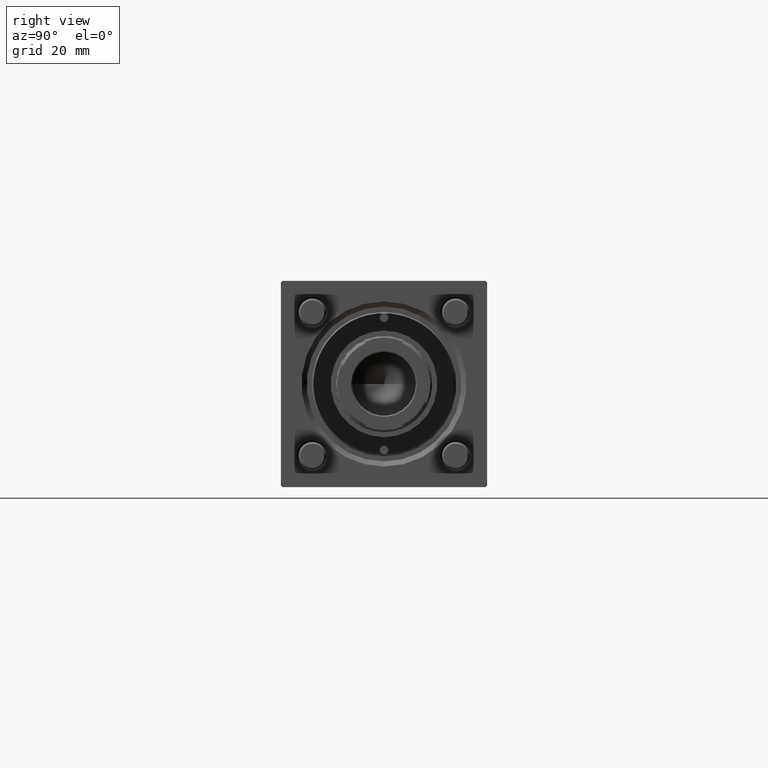
[diagram: clean part render]
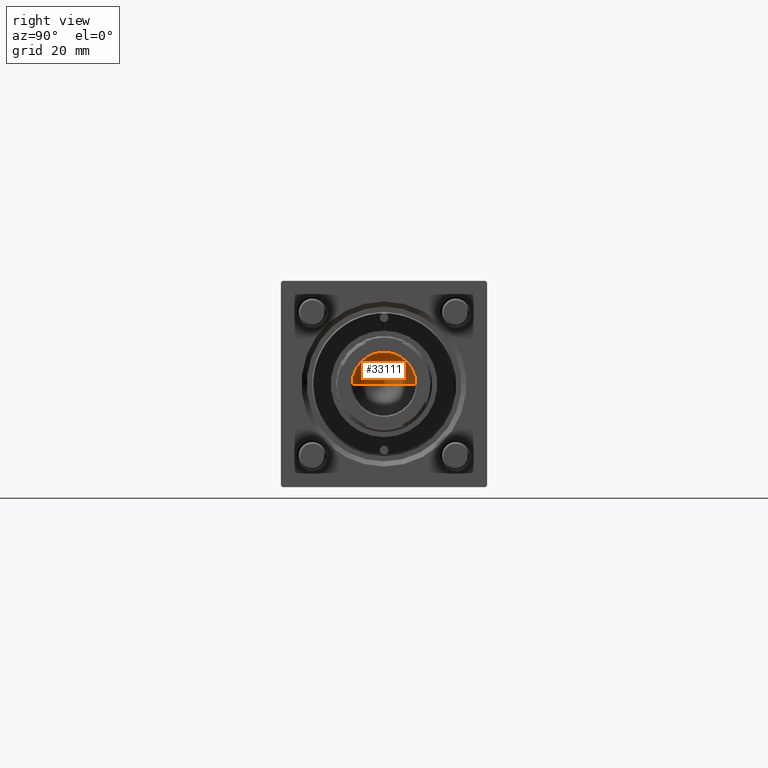
[diagram: same view with one face highlighted and labeled with its STEP entity id]
A machine part, right view. The second image highlights one B-rep face of the part: STEP entity #33111.
In plain terms, the highlighted conical surface has half-angle 59 deg.
Its self-contained STEP definition (entity closure, byte-faithful):
#3789 = CIRCLE ( 'NONE', #35023, 9.249999999999992895 ) ;
#4833 = VECTOR ( 'NONE', #38969, 1000.000000000000000 ) ;
#5595 = DIRECTION ( 'NONE',  ( -0.000000000000000000, -0.000000000000000000, 1.000000000000000000 ) ) ;
#5855 = ORIENTED_EDGE ( 'NONE', *, *, #18677, .F. ) ;
#13964 = DIRECTION ( 'NONE',  ( 1.000000000000000000, 0.000000000000000000, 0.000000000000000000 ) ) ;
#16335 = DIRECTION ( 'NONE',  ( 1.000000000000000000, 0.000000000000000000, 0.000000000000000000 ) ) ;
#18677 = EDGE_CURVE ( 'NONE', #32342, #31755, #35589, .T. ) ;
#20591 = CARTESIAN_POINT ( 'NONE',  ( -9.769621978240258809E-15, 0.000000000000000000, 95.44203927399506426 ) ) ;
#20856 = CONICAL_SURFACE ( 'NONE', #53048, 9.249999999999992895, 1.029744258676653423 ) ;
#21392 = CARTESIAN_POINT ( 'NONE',  ( -9.249999999999992895, 1.132798289211300712E-15, 101.0000000000000000 ) ) ;
#26645 = DIRECTION ( 'NONE',  ( 0.8571673007021117785, 0.000000000000000000, 0.5150380749100550437 ) ) ;
#26936 = CARTESIAN_POINT ( 'NONE',  ( 9.249999999999992895, 0.000000000000000000, 101.0000000000000000 ) ) ;
#27940 = EDGE_LOOP ( 'NONE', ( #5855, #49549, #52875 ) ) ;
#28646 = VERTEX_POINT ( 'NONE', #54750 ) ;
#30033 = LINE ( 'NONE', #21392, #4833 ) ;
#31258 = VECTOR ( 'NONE', #26645, 1000.000000000000000 ) ;
#31755 = VERTEX_POINT ( 'NONE', #37512 ) ;
#32342 = VERTEX_POINT ( 'NONE', #20591 ) ;
#33111 = ADVANCED_FACE ( 'NONE', ( #34473 ), #20856, .F. ) ;
#34473 = FACE_OUTER_BOUND ( 'NONE', #27940, .T. ) ;
#35023 = AXIS2_PLACEMENT_3D ( 'NONE', #49108, #5595, #13964 ) ;
#35589 = LINE ( 'NONE', #26936, #31258 ) ;
#37512 = CARTESIAN_POINT ( 'NONE',  ( 9.249999999999992895, 0.000000000000000000, 101.0000000000000000 ) ) ;
#38969 = DIRECTION ( 'NONE',  ( -0.8571673007021117785, 1.049727191138617956E-16, 0.5150380749100550437 ) ) ;
#47539 = EDGE_CURVE ( 'NONE', #28646, #31755, #3789, .T. ) ;
#47733 = CARTESIAN_POINT ( 'NONE',  ( 0.000000000000000000, 0.000000000000000000, 101.0000000000000000 ) ) ;
#49108 = CARTESIAN_POINT ( 'NONE',  ( 0.000000000000000000, 0.000000000000000000, 101.0000000000000000 ) ) ;
#49549 = ORIENTED_EDGE ( 'NONE', *, *, #53879, .T. ) ;
#52875 = ORIENTED_EDGE ( 'NONE', *, *, #47539, .T. ) ;
#53048 = AXIS2_PLACEMENT_3D ( 'NONE', #47733, #55842, #16335 ) ;
#53879 = EDGE_CURVE ( 'NONE', #32342, #28646, #30033, .T. ) ;
#54750 = CARTESIAN_POINT ( 'NONE',  ( -9.249999999999992895, 1.132798289211300712E-15, 101.0000000000000000 ) ) ;
#55842 = DIRECTION ( 'NONE',  ( -0.000000000000000000, -0.000000000000000000, 1.000000000000000000 ) ) ;